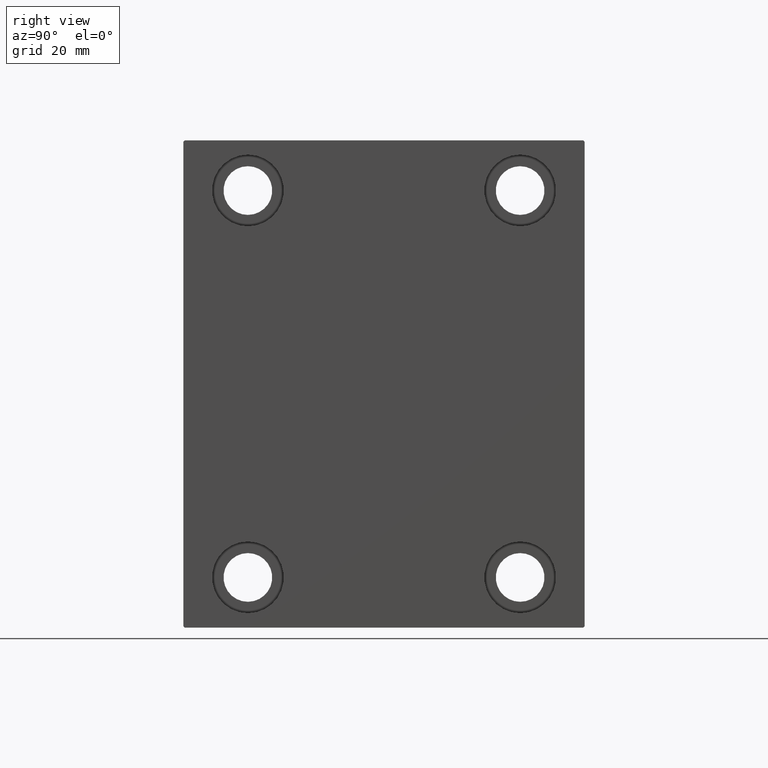
[diagram: clean part render]
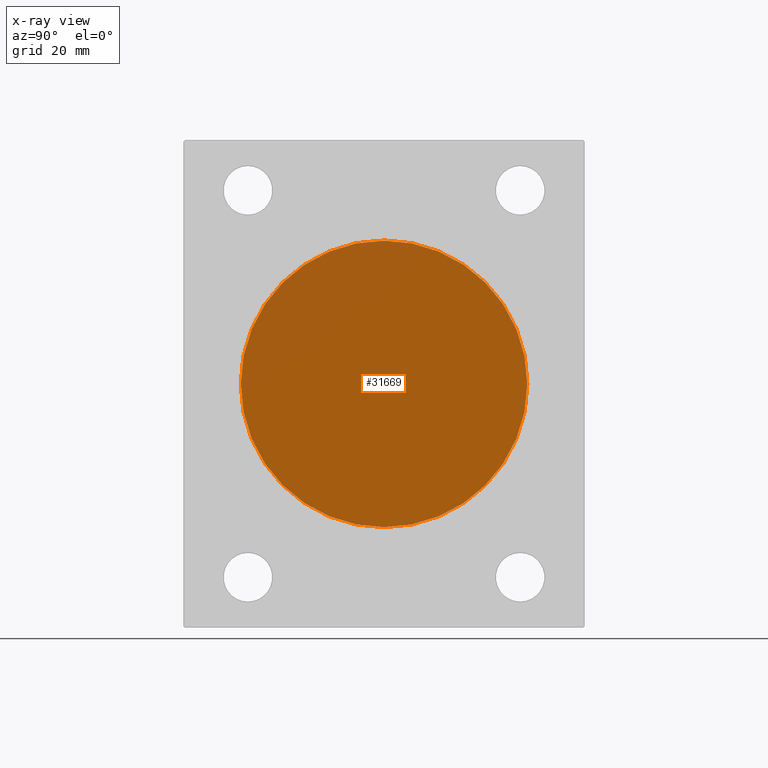
[diagram: x-ray — body ghosted, one internal face saturated and labeled with its STEP entity id]
A machine part, right view, then the same camera in x-ray: the body is ghosted and one INTERNAL B-rep face — a face not visible from any outside direction — is saturated and labeled: STEP entity #31669.
In plain terms, the highlighted planar face has unit normal (-1, 0, 0).
Its self-contained STEP definition (entity closure, byte-faithful):
#5130 = EDGE_CURVE ( 'NONE', #24258, #36726, #6057, .T. ) ;
#6057 = CIRCLE ( 'NONE', #8202, 50.00000000000000000 ) ;
#6890 = AXIS2_PLACEMENT_3D ( 'NONE', #29582, #19131, #9337 ) ;
#7115 = DIRECTION ( 'NONE',  ( 0.000000000000000000, 0.000000000000000000, 1.000000000000000000 ) ) ;
#7980 = DIRECTION ( 'NONE',  ( -1.000000000000000000, 0.000000000000000000, 0.000000000000000000 ) ) ;
#8202 = AXIS2_PLACEMENT_3D ( 'NONE', #31774, #7980, #7115 ) ;
#9109 = FACE_OUTER_BOUND ( 'NONE', #38236, .T. ) ;
#9337 = DIRECTION ( 'NONE',  ( 0.000000000000000000, 0.000000000000000000, 1.000000000000000000 ) ) ;
#10463 = ORIENTED_EDGE ( 'NONE', *, *, #5130, .T. ) ;
#11545 = CARTESIAN_POINT ( 'NONE',  ( 51.00000000000000000, 6.123233995736766085E-15, -50.00000000000000000 ) ) ;
#18434 = ORIENTED_EDGE ( 'NONE', *, *, #32522, .T. ) ;
#19131 = DIRECTION ( 'NONE',  ( -1.000000000000000000, 0.000000000000000000, 0.000000000000000000 ) ) ;
#21767 = AXIS2_PLACEMENT_3D ( 'NONE', #36929, #23321, #25786 ) ;
#23321 = DIRECTION ( 'NONE',  ( -1.000000000000000000, 0.000000000000000000, 0.000000000000000000 ) ) ;
#24258 = VERTEX_POINT ( 'NONE', #36048 ) ;
#25786 = DIRECTION ( 'NONE',  ( 0.000000000000000000, 0.000000000000000000, 1.000000000000000000 ) ) ;
#29582 = CARTESIAN_POINT ( 'NONE',  ( 51.00000000000000000, 0.000000000000000000, 0.000000000000000000 ) ) ;
#31669 = ADVANCED_FACE ( 'NONE', ( #9109 ), #36477, .T. ) ;
#31774 = CARTESIAN_POINT ( 'NONE',  ( 51.00000000000000000, 0.000000000000000000, 0.000000000000000000 ) ) ;
#31786 = CIRCLE ( 'NONE', #6890, 50.00000000000000000 ) ;
#32522 = EDGE_CURVE ( 'NONE', #36726, #24258, #31786, .T. ) ;
#36048 = CARTESIAN_POINT ( 'NONE',  ( 51.00000000000000000, 0.000000000000000000, 50.00000000000000000 ) ) ;
#36477 = PLANE ( 'NONE',  #21767 ) ;
#36726 = VERTEX_POINT ( 'NONE', #11545 ) ;
#36929 = CARTESIAN_POINT ( 'NONE',  ( 51.00000000000000000, 0.000000000000000000, 0.000000000000000000 ) ) ;
#38236 = EDGE_LOOP ( 'NONE', ( #10463, #18434 ) ) ;